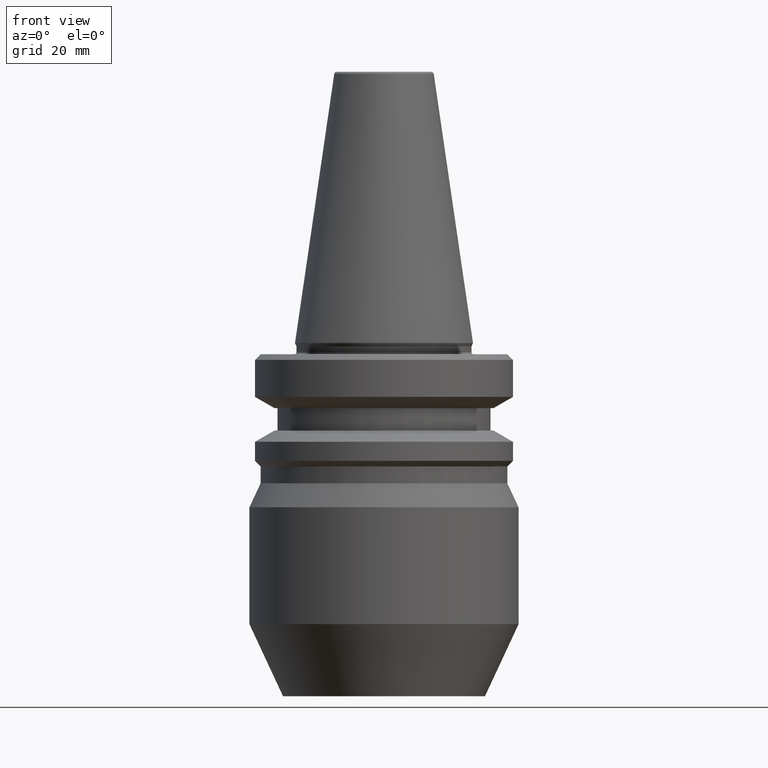
[diagram: clean part render]
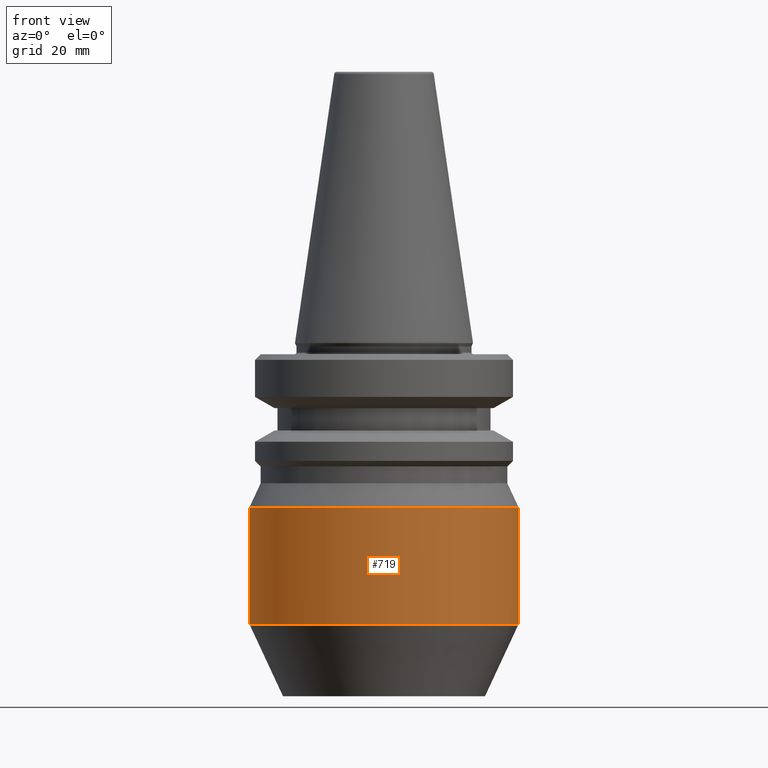
[diagram: same view with one face highlighted and labeled with its STEP entity id]
A machine part, front view. The second image highlights one B-rep face of the part: STEP entity #719.
In plain terms, the highlighted cylindrical surface (partial cylindrical patch) has radius 24 mm, axis along (-0, -0, 1).
Its self-contained STEP definition (entity closure, byte-faithful):
#29 = CIRCLE ( 'NONE', #252, 23.99999999999813500 ) ;
#47 = AXIS2_PLACEMENT_3D ( 'NONE', #687, #613, #497 ) ;
#75 = DIRECTION ( 'NONE',  ( 1.000000000000000000, 0.0000000000000000000, 0.0000000000000000000 ) ) ;
#139 = VERTEX_POINT ( 'NONE', #856 ) ;
#171 = AXIS2_PLACEMENT_3D ( 'NONE', #356, #859, #230 ) ;
#219 = LINE ( 'NONE', #551, #527 ) ;
#230 = DIRECTION ( 'NONE',  ( 1.000000000000000000, 0.0000000000000000000, 0.0000000000000000000 ) ) ;
#247 = DIRECTION ( 'NONE',  ( -0.0000000000000000000, -0.0000000000000000000, 1.000000000000000000 ) ) ;
#250 = VECTOR ( 'NONE', #849, 1000.000000000000000 ) ;
#252 = AXIS2_PLACEMENT_3D ( 'NONE', #413, #289, #75 ) ;
#289 = DIRECTION ( 'NONE',  ( -0.0000000000000000000, -0.0000000000000000000, 1.000000000000000000 ) ) ;
#356 = CARTESIAN_POINT ( 'NONE',  ( 0.0000000000000000000, 0.0000000000000000000, -50.13295847694320200 ) ) ;
#371 = EDGE_CURVE ( 'NONE', #994, #139, #29, .T. ) ;
#402 = EDGE_CURVE ( 'NONE', #717, #139, #219, .T. ) ;
#413 = CARTESIAN_POINT ( 'NONE',  ( 0.0000000000000000000, 0.0000000000000000000, -29.28901384101512000 ) ) ;
#415 = FACE_OUTER_BOUND ( 'NONE', #630, .T. ) ;
#453 = VERTEX_POINT ( 'NONE', #555 ) ;
#458 = EDGE_CURVE ( 'NONE', #453, #717, #864, .T. ) ;
#497 = DIRECTION ( 'NONE',  ( 1.000000000000000000, 0.0000000000000000000, 0.0000000000000000000 ) ) ;
#499 = CARTESIAN_POINT ( 'NONE',  ( -23.99999999999813500, 2.939152317953419500E-015, -29.28901384101512000 ) ) ;
#520 = ORIENTED_EDGE ( 'NONE', *, *, #692, .F. ) ;
#527 = VECTOR ( 'NONE', #247, 1000.000000000000000 ) ;
#551 = CARTESIAN_POINT ( 'NONE',  ( 23.99999999999813500, 0.0000000000000000000, 80.11315735852554100 ) ) ;
#555 = CARTESIAN_POINT ( 'NONE',  ( -23.99999999999813500, 2.939152317953419500E-015, -50.13295847694320200 ) ) ;
#573 = CARTESIAN_POINT ( 'NONE',  ( 23.99999999999813500, 0.0000000000000000000, -50.13295847694320200 ) ) ;
#613 = DIRECTION ( 'NONE',  ( -0.0000000000000000000, -0.0000000000000000000, 1.000000000000000000 ) ) ;
#630 = EDGE_LOOP ( 'NONE', ( #520, #966, #819, #776 ) ) ;
#687 = CARTESIAN_POINT ( 'NONE',  ( 0.0000000000000000000, 0.0000000000000000000, 80.11315735852554100 ) ) ;
#692 = EDGE_CURVE ( 'NONE', #453, #994, #837, .T. ) ;
#717 = VERTEX_POINT ( 'NONE', #573 ) ;
#719 = ADVANCED_FACE ( 'NONE', ( #415 ), #1003, .T. ) ;
#776 = ORIENTED_EDGE ( 'NONE', *, *, #371, .F. ) ;
#819 = ORIENTED_EDGE ( 'NONE', *, *, #402, .T. ) ;
#837 = LINE ( 'NONE', #845, #250 ) ;
#845 = CARTESIAN_POINT ( 'NONE',  ( -23.99999999999813500, 2.939152317953419500E-015, 80.11315735852554100 ) ) ;
#849 = DIRECTION ( 'NONE',  ( -0.0000000000000000000, -0.0000000000000000000, 1.000000000000000000 ) ) ;
#856 = CARTESIAN_POINT ( 'NONE',  ( 23.99999999999813500, 0.0000000000000000000, -29.28901384101512000 ) ) ;
#859 = DIRECTION ( 'NONE',  ( -0.0000000000000000000, -0.0000000000000000000, 1.000000000000000000 ) ) ;
#864 = CIRCLE ( 'NONE', #171, 23.99999999999813500 ) ;
#966 = ORIENTED_EDGE ( 'NONE', *, *, #458, .T. ) ;
#994 = VERTEX_POINT ( 'NONE', #499 ) ;
#1003 = CYLINDRICAL_SURFACE ( 'NONE', #47, 23.99999999999813500 ) ;